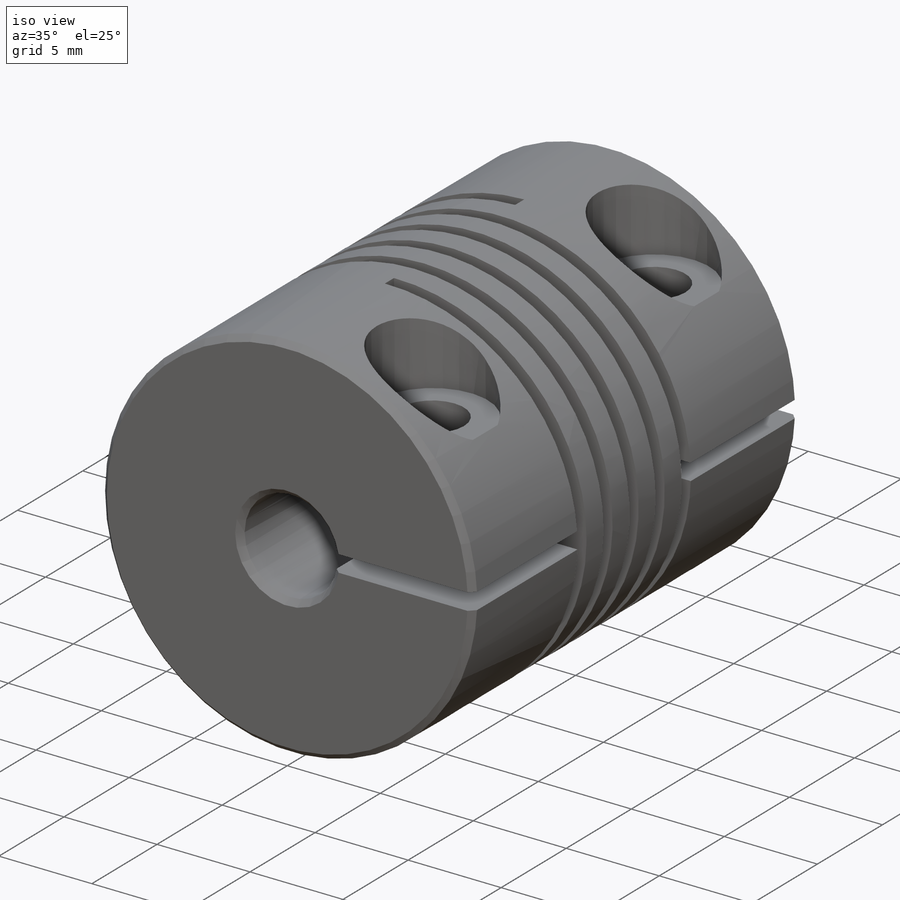
[diagram: iso view]
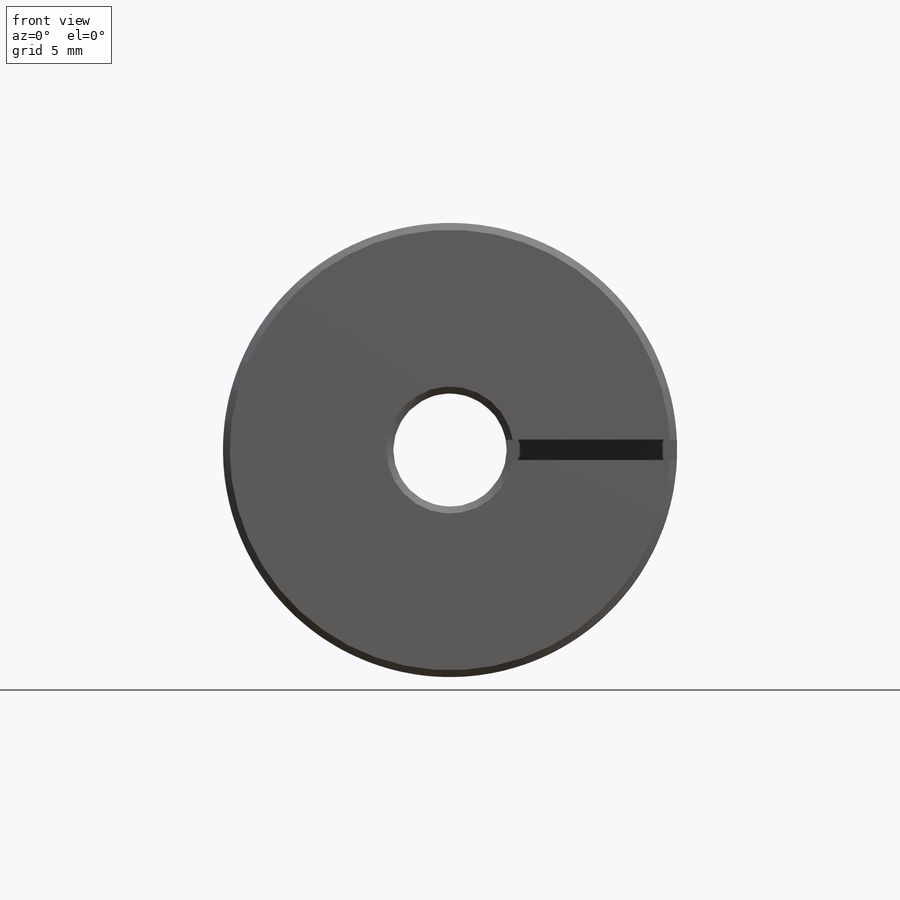
[diagram: front view]
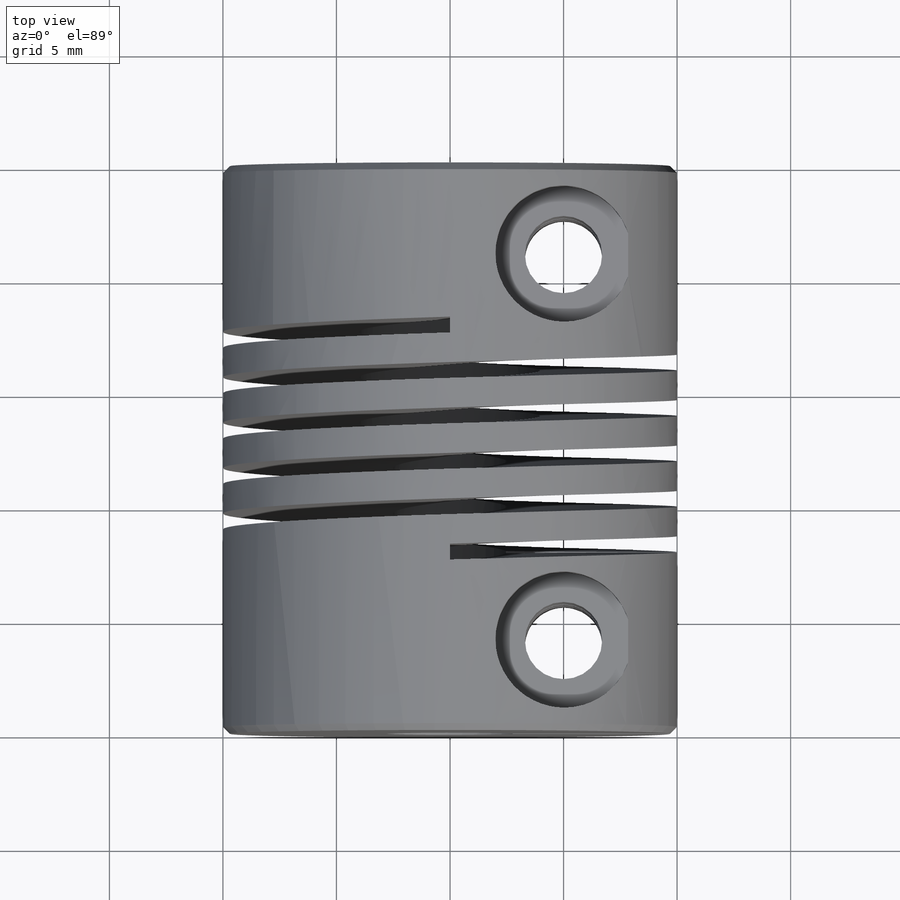
[diagram: top view]
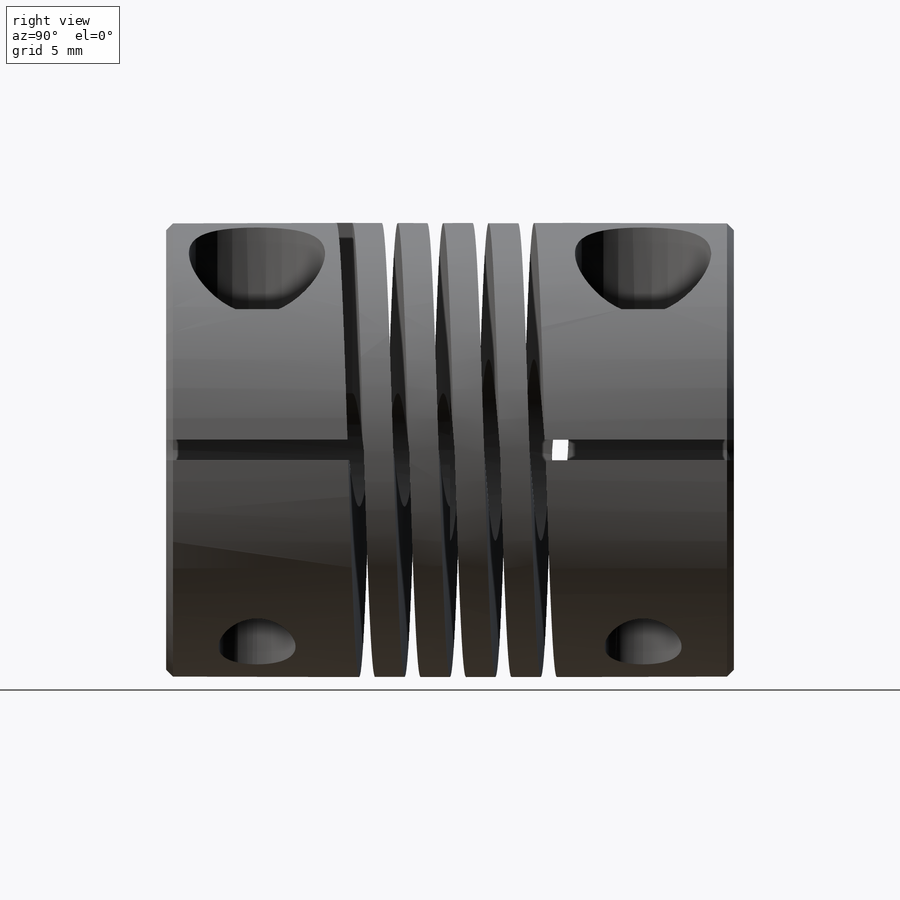
[diagram: right view]
SOLIDWORKS PART (.sldprt)
format: sldprt  version: not decoded by parser v0  size: 488,448 bytes
history: native  units: mm
features: sketch x8, cut_extrude x3, plane x2, material x1, extrude x1, helix x1, sweep x1, hole x1, chamfer x1 (+13 scaffold rows collapsed)
feature tree (32):
  scaffold x13  (default folders/planes/origin — collapsed)
  material  "6061-T6 (SS)"
  sketch  "Sketch1"  dims[D1=20.0mm D2=5.0mm]
  extrude  "Boss-Extrude1"  Depth=25mm
  sketch  "Sketch3"  dims[D1=8.0mm]
  cut_extrude  "Cut-Extrude1"  Depth=12.5mm
  plane  "Plane1"  Offset=7.5mm
  sketch  "Sketch4"  dims[D1=22.0mm]
  helix  "Helix/Spiral1"  Pitch=10mm
  sketch  "Sketch5"  dims[c1.D1=11.41mm c1.D2=15.4mm c1.D3=0.7mm c1.D4=~0.242555mm c2.D1=2.0mm c2.D2=1.0mm]
  sweep  "Cut-Sweep1"
  plane  "Plane2"  Offset=10mm
  hole  "CBORE for M3 SHCS1"  Diameter=3.4mm Depth=20mm
  sketch  "Sketch14"  dims[D1=17.0mm D2=5.0mm]
  sketch  "Sketch13"  dims[hole-wizard template sketch: 43 standard entries collapsed; hole parameters kept: c12.C'Bore Dia.=6.0mm c12.C'Bore Depth=3.8mm]
  sketch  "Sketch11"  dims[D1=0.9mm D2=8.0mm D3=2.25mm]
  cut_extrude  "Cut-Extrude2"  [1 undecoded]
  cut_extrude  "Cut-Extrude3"  [1 undecoded]
  sketch  "Sketch11<3>"  dims[D19=25.0mm]
  chamfer  "Chamfer1"  Distance=0.3mm Angle=45deg
decode coverage: 13 of 16 modeling features carry decoded parameters
note: ~ marks probable driven/reference dimensions
note: 2 parameter values undecoded
note: suppression state not decoded; provenance and decode notes live in map.json
